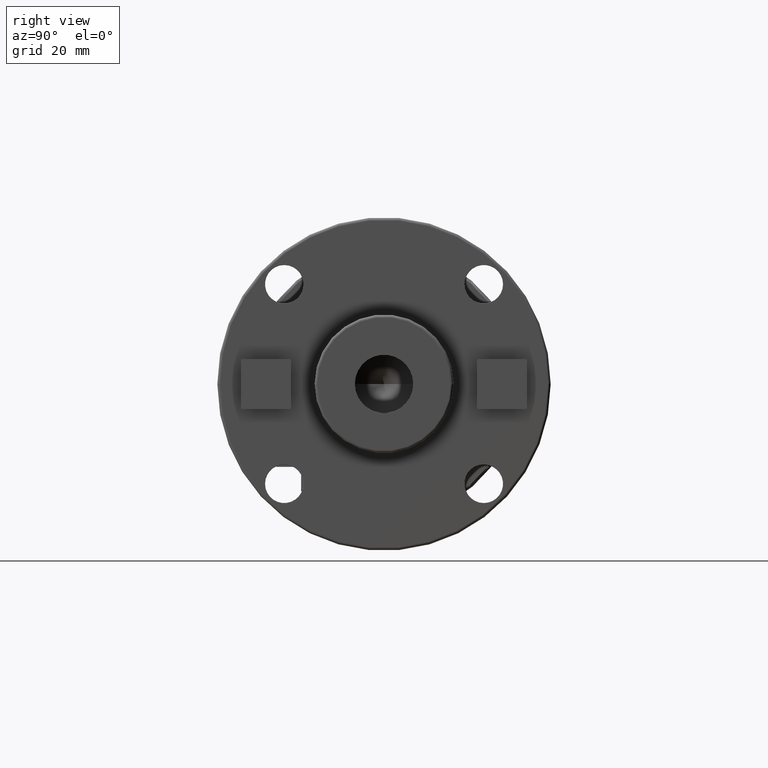
[diagram: clean part render]
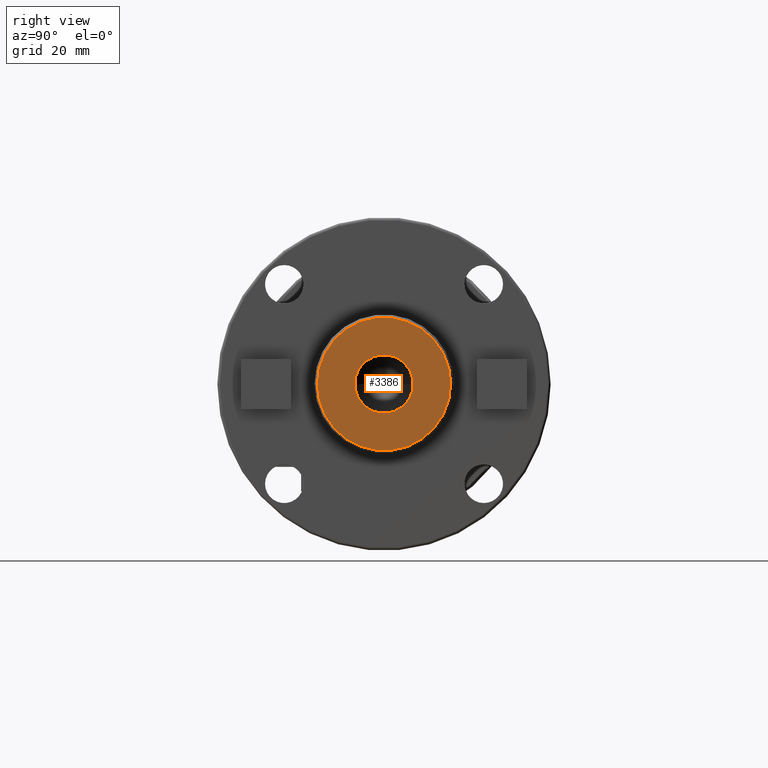
[diagram: same view with one face highlighted and labeled with its STEP entity id]
A machine part, right view. The second image highlights one B-rep face of the part: STEP entity #3386.
In plain terms, the highlighted planar face has unit normal (1, 0, 0).
Its self-contained STEP definition (entity closure, byte-faithful):
#1319=CARTESIAN_POINT('',(1.E2,0.E0,0.E0));
#1320=DIRECTION('',(-1.E0,0.E0,0.E0));
#1321=DIRECTION('',(0.E0,1.E0,0.E0));
#1322=AXIS2_PLACEMENT_3D('',#1319,#1320,#1321);
#1324=CARTESIAN_POINT('',(1.E2,0.E0,0.E0));
#1325=DIRECTION('',(-1.E0,0.E0,0.E0));
#1326=DIRECTION('',(0.E0,-1.E0,0.E0));
#1327=AXIS2_PLACEMENT_3D('',#1324,#1325,#1326);
#1329=CARTESIAN_POINT('',(1.E2,0.E0,0.E0));
#1330=DIRECTION('',(1.E0,0.E0,0.E0));
#1331=DIRECTION('',(0.E0,-1.E0,0.E0));
#1332=AXIS2_PLACEMENT_3D('',#1329,#1330,#1331);
#1334=CARTESIAN_POINT('',(1.E2,0.E0,0.E0));
#1335=DIRECTION('',(1.E0,0.E0,0.E0));
#1336=DIRECTION('',(0.E0,1.E0,0.E0));
#1337=AXIS2_PLACEMENT_3D('',#1334,#1335,#1336);
#1960=CARTESIAN_POINT('',(1.E2,-1.05E1,0.E0));
#1961=CARTESIAN_POINT('',(1.E2,1.05E1,0.E0));
#1962=VERTEX_POINT('',#1960);
#1963=VERTEX_POINT('',#1961);
#1968=CARTESIAN_POINT('',(1.E2,2.4E1,0.E0));
#1969=CARTESIAN_POINT('',(1.E2,-2.4E1,0.E0));
#1970=VERTEX_POINT('',#1968);
#1971=VERTEX_POINT('',#1969);
#3371=CARTESIAN_POINT('',(1.E2,0.E0,0.E0));
#3372=DIRECTION('',(1.E0,0.E0,0.E0));
#3373=DIRECTION('',(0.E0,-1.E0,0.E0));
#3374=AXIS2_PLACEMENT_3D('',#3371,#3372,#3373);
#3375=PLANE('',#3374);
#3376=ORIENTED_EDGE('',*,*,#3353,.T.);
#3377=ORIENTED_EDGE('',*,*,#3338,.T.);
#3378=EDGE_LOOP('',(#3376,#3377));
#3379=FACE_OUTER_BOUND('',#3378,.F.);
#3381=ORIENTED_EDGE('',*,*,#3380,.T.);
#3383=ORIENTED_EDGE('',*,*,#3382,.T.);
#3384=EDGE_LOOP('',(#3381,#3383));
#3385=FACE_BOUND('',#3384,.F.);
#3386=ADVANCED_FACE('',(#3379,#3385),#3375,.T.);
#1323=CIRCLE('',#1322,2.4E1);
#1328=CIRCLE('',#1327,2.4E1);
#1333=CIRCLE('',#1332,1.05E1);
#1338=CIRCLE('',#1337,1.05E1);
#3338=EDGE_CURVE('',#1971,#1970,#1328,.T.);
#3353=EDGE_CURVE('',#1970,#1971,#1323,.T.);
#3380=EDGE_CURVE('',#1962,#1963,#1333,.T.);
#3382=EDGE_CURVE('',#1963,#1962,#1338,.T.);